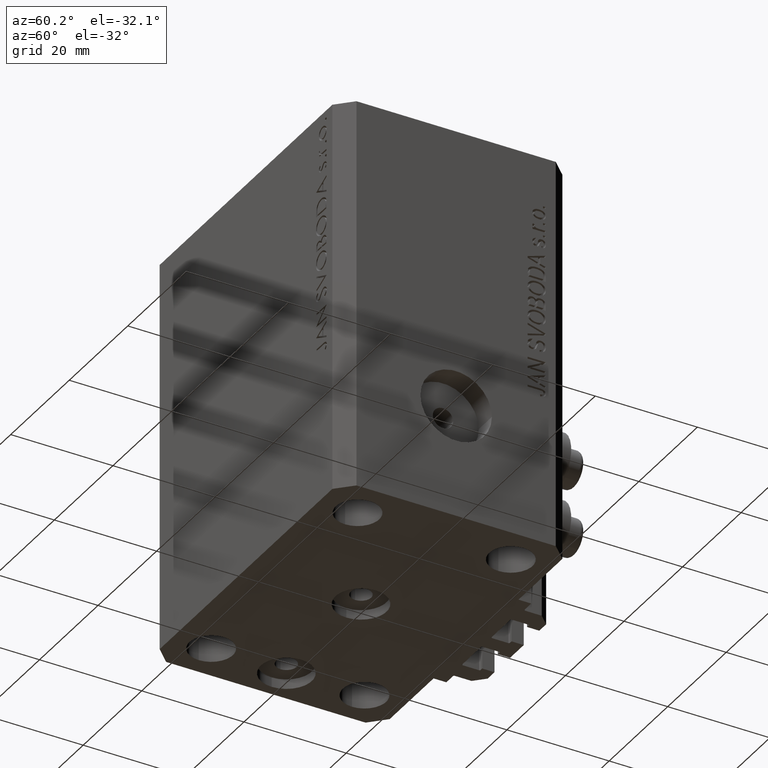
[diagram: clean part render]
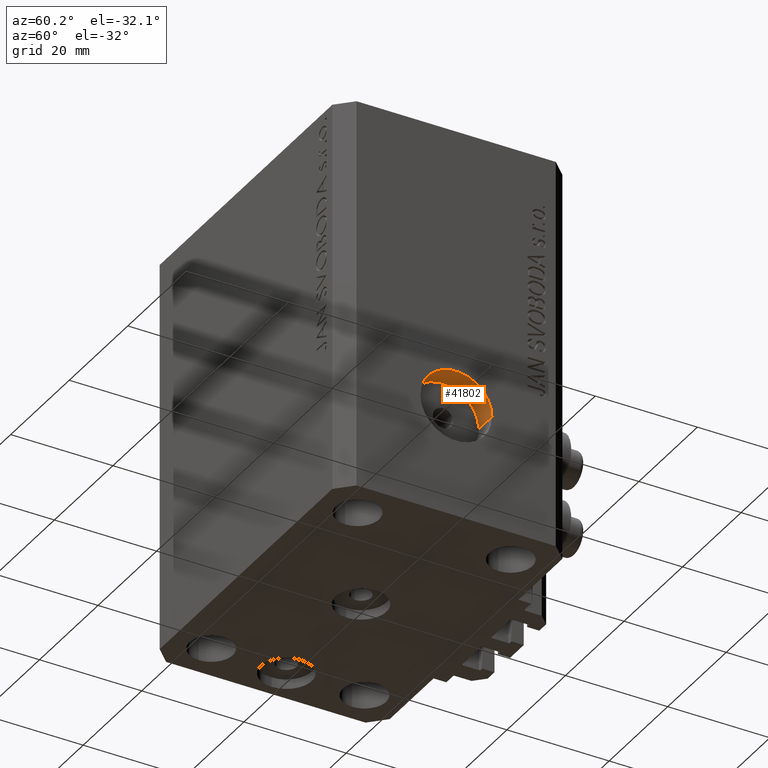
[diagram: same view with one face highlighted and labeled with its STEP entity id]
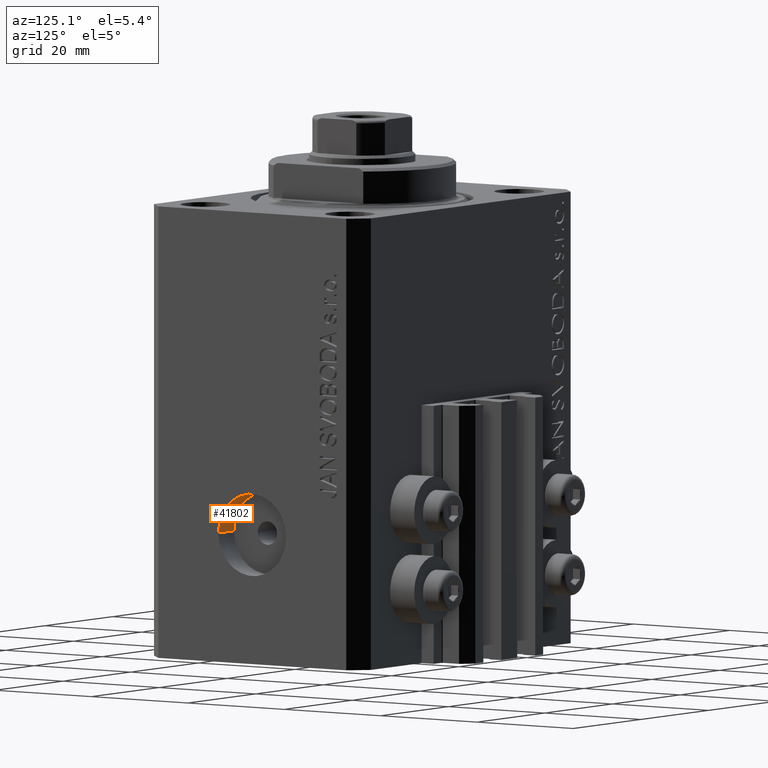
[diagram: same view with one face highlighted and labeled with its STEP entity id]
A machine part, auxiliary view. The second image highlights one B-rep face of the part: STEP entity #41802.
A second angle (auxiliary view) of the same face is appended — the face is thin or edge-on in the first view.
In plain terms, the highlighted cylindrical surface (partial cylindrical patch) has radius 7 mm, axis along (1, -0, 0).
Its self-contained STEP definition (entity closure, byte-faithful):
#683 = CIRCLE ( 'NONE', #35944, 7.000000000000000000 ) ;
#820 = VERTEX_POINT ( 'NONE', #7262 ) ;
#4939 = ORIENTED_EDGE ( 'NONE', *, *, #18092, .F. ) ;
#6450 = CARTESIAN_POINT ( 'NONE',  ( 27.99999999999668177, -6.999999999999957367, -55.00000000000000000 ) ) ;
#6623 = ORIENTED_EDGE ( 'NONE', *, *, #11646, .F. ) ;
#6781 = DIRECTION ( 'NONE',  ( 1.000000000000000000, -1.334402673828348976E-14, -0.000000000000000000 ) ) ;
#7262 = CARTESIAN_POINT ( 'NONE',  ( 27.99999999999686651, 7.000000000000042633, -55.00000000000000000 ) ) ;
#10223 = CARTESIAN_POINT ( 'NONE',  ( 32.49999999999686651, 6.999999999999983125, -55.00000000000000000 ) ) ;
#10382 = CARTESIAN_POINT ( 'NONE',  ( 27.99999999999677414, 4.270088556253899177E-14, -55.00000000000000000 ) ) ;
#11646 = EDGE_CURVE ( 'NONE', #21425, #22750, #38343, .T. ) ;
#13892 = DIRECTION ( 'NONE',  ( 1.000000000000000000, -1.334402673828348976E-14, -0.000000000000000000 ) ) ;
#15732 = ORIENTED_EDGE ( 'NONE', *, *, #21612, .T. ) ;
#16250 = DIRECTION ( 'NONE',  ( 1.288651725011342390E-14, 1.000000000000000000, 0.000000000000000000 ) ) ;
#16256 = DIRECTION ( 'NONE',  ( 1.000000000000000000, -1.334402673828348976E-14, -0.000000000000000000 ) ) ;
#18092 = EDGE_CURVE ( 'NONE', #820, #21425, #30587, .T. ) ;
#20709 = VECTOR ( 'NONE', #13892, 1000.000000000000000 ) ;
#21425 = VERTEX_POINT ( 'NONE', #6450 ) ;
#21612 = EDGE_CURVE ( 'NONE', #46056, #22750, #683, .T. ) ;
#22750 = VERTEX_POINT ( 'NONE', #31662 ) ;
#23700 = CARTESIAN_POINT ( 'NONE',  ( 32.49999999999677414, -1.734723475973671215E-14, -55.00000000000000000 ) ) ;
#24800 = EDGE_CURVE ( 'NONE', #820, #46056, #32146, .T. ) ;
#24894 = ORIENTED_EDGE ( 'NONE', *, *, #24800, .T. ) ;
#25028 = CYLINDRICAL_SURFACE ( 'NONE', #40392, 7.000000000000000000 ) ;
#25271 = FACE_OUTER_BOUND ( 'NONE', #36660, .T. ) ;
#27930 = DIRECTION ( 'NONE',  ( 1.338215252896394112E-14, 1.000000000000000000, 0.000000000000000000 ) ) ;
#30587 = CIRCLE ( 'NONE', #35201, 7.000000000000000000 ) ;
#31662 = CARTESIAN_POINT ( 'NONE',  ( 32.49999999999668177, -7.000000000000018652, -55.00000000000000000 ) ) ;
#31692 = CARTESIAN_POINT ( 'NONE',  ( 27.99999999999677414, 4.270088556253899177E-14, -55.00000000000000000 ) ) ;
#32146 = LINE ( 'NONE', #47231, #20709 ) ;
#35201 = AXIS2_PLACEMENT_3D ( 'NONE', #31692, #38884, #46318 ) ;
#35944 = AXIS2_PLACEMENT_3D ( 'NONE', #23700, #46001, #16250 ) ;
#36660 = EDGE_LOOP ( 'NONE', ( #6623, #4939, #24894, #15732 ) ) ;
#38343 = LINE ( 'NONE', #38572, #46459 ) ;
#38572 = CARTESIAN_POINT ( 'NONE',  ( 27.99999999999668177, -6.999999999999957367, -55.00000000000000000 ) ) ;
#38884 = DIRECTION ( 'NONE',  ( 1.000000000000000000, -1.334402673828349134E-14, 0.000000000000000000 ) ) ;
#40392 = AXIS2_PLACEMENT_3D ( 'NONE', #10382, #6781, #27930 ) ;
#41802 = ADVANCED_FACE ( 'NONE', ( #25271 ), #25028, .F. ) ;
#46001 = DIRECTION ( 'NONE',  ( 1.000000000000000000, -1.334402673828349134E-14, 0.000000000000000000 ) ) ;
#46056 = VERTEX_POINT ( 'NONE', #10223 ) ;
#46318 = DIRECTION ( 'NONE',  ( 1.338215252896394112E-14, 1.000000000000000000, 0.000000000000000000 ) ) ;
#46459 = VECTOR ( 'NONE', #16256, 1000.000000000000000 ) ;
#47231 = CARTESIAN_POINT ( 'NONE',  ( 27.99999999999686651, 7.000000000000042633, -55.00000000000000000 ) ) ;